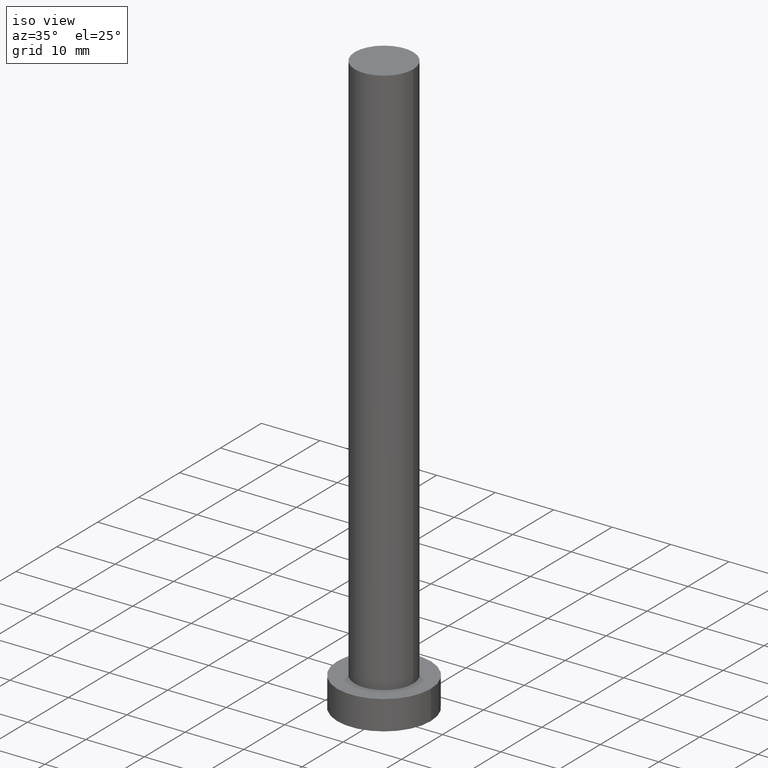
[diagram: clean part render]
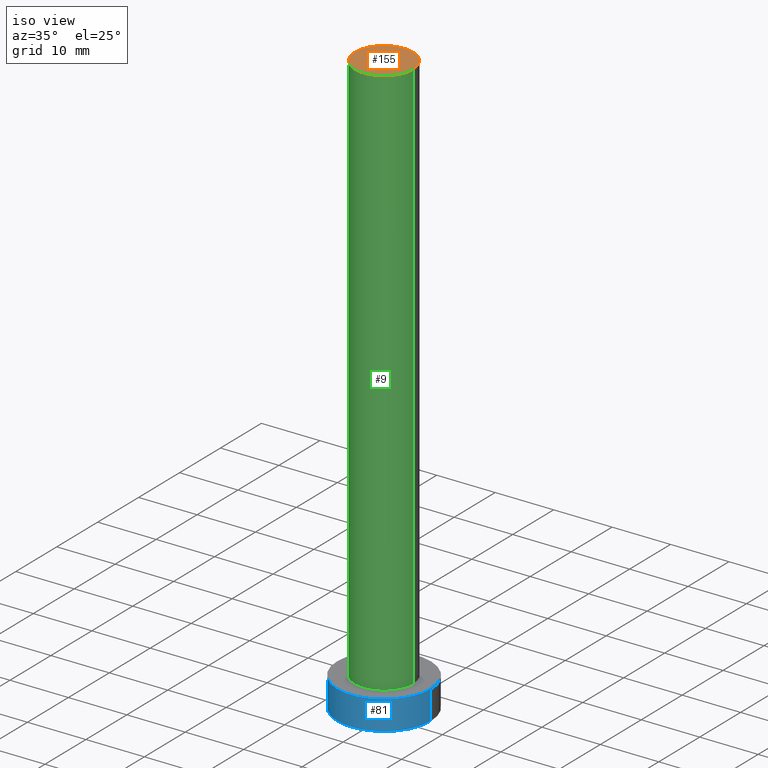
[diagram: same view with three faces highlighted in distinct colors, each labeled with its STEP entity id]
A machine part, iso view with three faces highlighted in distinct colors.
Their STEP definitions:

[orange] entity #155 — the highlighted planar face has unit normal (0, 0, 1).
#3 = CARTESIAN_POINT ( 'NONE',  ( 5.000000000000000000, 6.123233995736766282E-16, 100.0000000000000000 ) ) ;
#13 = CIRCLE ( 'NONE', #78, 5.000000000000000000 ) ;
#40 = EDGE_CURVE ( 'NONE', #74, #234, #214, .T. ) ;
#74 = VERTEX_POINT ( 'NONE', #137 ) ;
#78 = AXIS2_PLACEMENT_3D ( 'NONE', #207, #83, #128 ) ;
#83 = DIRECTION ( 'NONE',  ( 0.000000000000000000, 0.000000000000000000, 1.000000000000000000 ) ) ;
#95 = EDGE_LOOP ( 'NONE', ( #120, #135 ) ) ;
#107 = PLANE ( 'NONE',  #247 ) ;
#119 = EDGE_CURVE ( 'NONE', #234, #74, #13, .T. ) ;
#120 = ORIENTED_EDGE ( 'NONE', *, *, #40, .T. ) ;
#128 = DIRECTION ( 'NONE',  ( 1.000000000000000000, 0.000000000000000000, 0.000000000000000000 ) ) ;
#135 = ORIENTED_EDGE ( 'NONE', *, *, #119, .T. ) ;
#137 = CARTESIAN_POINT ( 'NONE',  ( -5.000000000000000000, 0.000000000000000000, 100.0000000000000000 ) ) ;
#155 = ADVANCED_FACE ( 'NONE', ( #206 ), #107, .T. ) ;
#162 = DIRECTION ( 'NONE',  ( 1.000000000000000000, 0.000000000000000000, -0.000000000000000000 ) ) ;
#166 = AXIS2_PLACEMENT_3D ( 'NONE', #195, #180, #252 ) ;
#180 = DIRECTION ( 'NONE',  ( 0.000000000000000000, 0.000000000000000000, 1.000000000000000000 ) ) ;
#185 = DIRECTION ( 'NONE',  ( 0.000000000000000000, 0.000000000000000000, 1.000000000000000000 ) ) ;
#195 = CARTESIAN_POINT ( 'NONE',  ( 0.000000000000000000, 0.000000000000000000, 100.0000000000000000 ) ) ;
#206 = FACE_OUTER_BOUND ( 'NONE', #95, .T. ) ;
#207 = CARTESIAN_POINT ( 'NONE',  ( 0.000000000000000000, 0.000000000000000000, 100.0000000000000000 ) ) ;
#214 = CIRCLE ( 'NONE', #166, 5.000000000000000000 ) ;
#224 = CARTESIAN_POINT ( 'NONE',  ( 0.000000000000000000, 0.000000000000000000, 100.0000000000000000 ) ) ;
#234 = VERTEX_POINT ( 'NONE', #3 ) ;
#247 = AXIS2_PLACEMENT_3D ( 'NONE', #224, #185, #162 ) ;
#252 = DIRECTION ( 'NONE',  ( 1.000000000000000000, 0.000000000000000000, 0.000000000000000000 ) ) ;

[blue] entity #81 — the highlighted cylindrical surface (partial cylindrical patch) has radius 8 mm, axis along (-0, -0, -1).
#15 = DIRECTION ( 'NONE',  ( -0.000000000000000000, -0.000000000000000000, -1.000000000000000000 ) ) ;
#24 = EDGE_CURVE ( 'NONE', #104, #139, #255, .T. ) ;
#34 = ORIENTED_EDGE ( 'NONE', *, *, #67, .F. ) ;
#37 = CARTESIAN_POINT ( 'NONE',  ( 0.000000000000000000, 0.000000000000000000, 5.000000000000000000 ) ) ;
#42 = CARTESIAN_POINT ( 'NONE',  ( -8.000000000000000000, 0.000000000000000000, 5.000000000000000000 ) ) ;
#43 = CARTESIAN_POINT ( 'NONE',  ( 0.000000000000000000, 0.000000000000000000, 0.000000000000000000 ) ) ;
#50 = CARTESIAN_POINT ( 'NONE',  ( 0.000000000000000000, 0.000000000000000000, 5.000000000000000000 ) ) ;
#60 = CARTESIAN_POINT ( 'NONE',  ( -8.000000000000000000, 0.000000000000000000, 0.000000000000000000 ) ) ;
#67 = EDGE_CURVE ( 'NONE', #104, #194, #160, .T. ) ;
#76 = ORIENTED_EDGE ( 'NONE', *, *, #24, .T. ) ;
#80 = CARTESIAN_POINT ( 'NONE',  ( 8.000000000000000000, 9.797174393178825657E-16, 5.000000000000000000 ) ) ;
#81 = ADVANCED_FACE ( 'NONE', ( #232 ), #220, .T. ) ;
#82 = DIRECTION ( 'NONE',  ( 0.000000000000000000, 0.000000000000000000, 1.000000000000000000 ) ) ;
#104 = VERTEX_POINT ( 'NONE', #42 ) ;
#105 = DIRECTION ( 'NONE',  ( -0.000000000000000000, -0.000000000000000000, -1.000000000000000000 ) ) ;
#113 = VECTOR ( 'NONE', #15, 1000.000000000000000 ) ;
#125 = CARTESIAN_POINT ( 'NONE',  ( 8.000000000000000000, 9.797174393178825657E-16, 5.000000000000000000 ) ) ;
#139 = VERTEX_POINT ( 'NONE', #60 ) ;
#158 = VERTEX_POINT ( 'NONE', #204 ) ;
#160 = CIRCLE ( 'NONE', #189, 8.000000000000000000 ) ;
#179 = CIRCLE ( 'NONE', #199, 8.000000000000000000 ) ;
#182 = ORIENTED_EDGE ( 'NONE', *, *, #250, .T. ) ;
#189 = AXIS2_PLACEMENT_3D ( 'NONE', #37, #233, #253 ) ;
#191 = EDGE_CURVE ( 'NONE', #194, #158, #243, .T. ) ;
#194 = VERTEX_POINT ( 'NONE', #125 ) ;
#196 = AXIS2_PLACEMENT_3D ( 'NONE', #50, #222, #200 ) ;
#199 = AXIS2_PLACEMENT_3D ( 'NONE', #43, #82, #226 ) ;
#200 = DIRECTION ( 'NONE',  ( -1.000000000000000000, 0.000000000000000000, 0.000000000000000000 ) ) ;
#202 = EDGE_LOOP ( 'NONE', ( #219, #34, #76, #182 ) ) ;
#204 = CARTESIAN_POINT ( 'NONE',  ( 8.000000000000000000, 9.797174393178825657E-16, 0.000000000000000000 ) ) ;
#215 = VECTOR ( 'NONE', #105, 1000.000000000000000 ) ;
#217 = CARTESIAN_POINT ( 'NONE',  ( -8.000000000000000000, 0.000000000000000000, 5.000000000000000000 ) ) ;
#219 = ORIENTED_EDGE ( 'NONE', *, *, #191, .F. ) ;
#220 = CYLINDRICAL_SURFACE ( 'NONE', #196, 8.000000000000000000 ) ;
#222 = DIRECTION ( 'NONE',  ( -0.000000000000000000, -0.000000000000000000, -1.000000000000000000 ) ) ;
#226 = DIRECTION ( 'NONE',  ( 1.000000000000000000, 0.000000000000000000, 0.000000000000000000 ) ) ;
#232 = FACE_OUTER_BOUND ( 'NONE', #202, .T. ) ;
#233 = DIRECTION ( 'NONE',  ( 0.000000000000000000, 0.000000000000000000, 1.000000000000000000 ) ) ;
#243 = LINE ( 'NONE', #80, #215 ) ;
#250 = EDGE_CURVE ( 'NONE', #139, #158, #179, .T. ) ;
#253 = DIRECTION ( 'NONE',  ( 1.000000000000000000, 0.000000000000000000, 0.000000000000000000 ) ) ;
#255 = LINE ( 'NONE', #217, #113 ) ;

[green] entity #9 — the highlighted cylindrical surface (edge-blend (fillet) strip) has radius 5 mm, axis along (-0, -0, -1).
#3 = CARTESIAN_POINT ( 'NONE',  ( 5.000000000000000000, 6.123233995736766282E-16, 100.0000000000000000 ) ) ;
#9 = ADVANCED_FACE ( 'NONE', ( #53 ), #100, .T. ) ;
#17 = ORIENTED_EDGE ( 'NONE', *, *, #40, .F. ) ;
#22 = LINE ( 'NONE', #38, #122 ) ;
#26 = CARTESIAN_POINT ( 'NONE',  ( 0.000000000000000000, 0.000000000000000000, 5.000000000000000000 ) ) ;
#31 = EDGE_LOOP ( 'NONE', ( #193, #17, #237, #205 ) ) ;
#32 = AXIS2_PLACEMENT_3D ( 'NONE', #94, #55, #102 ) ;
#38 = CARTESIAN_POINT ( 'NONE',  ( 5.000000000000000000, 6.123233995736766282E-16, 100.0000000000000000 ) ) ;
#40 = EDGE_CURVE ( 'NONE', #74, #234, #214, .T. ) ;
#47 = EDGE_CURVE ( 'NONE', #74, #178, #251, .T. ) ;
#53 = FACE_OUTER_BOUND ( 'NONE', #31, .T. ) ;
#54 = DIRECTION ( 'NONE',  ( -0.000000000000000000, -0.000000000000000000, -1.000000000000000000 ) ) ;
#55 = DIRECTION ( 'NONE',  ( -0.000000000000000000, -0.000000000000000000, -1.000000000000000000 ) ) ;
#61 = DIRECTION ( 'NONE',  ( 0.000000000000000000, 0.000000000000000000, 1.000000000000000000 ) ) ;
#74 = VERTEX_POINT ( 'NONE', #137 ) ;
#85 = DIRECTION ( 'NONE',  ( -0.000000000000000000, -0.000000000000000000, -1.000000000000000000 ) ) ;
#94 = CARTESIAN_POINT ( 'NONE',  ( 0.000000000000000000, 0.000000000000000000, 100.0000000000000000 ) ) ;
#100 = CYLINDRICAL_SURFACE ( 'NONE', #32, 5.000000000000000000 ) ;
#102 = DIRECTION ( 'NONE',  ( -1.000000000000000000, 0.000000000000000000, 0.000000000000000000 ) ) ;
#108 = CARTESIAN_POINT ( 'NONE',  ( 5.000000000000000000, 6.123233995736766282E-16, 5.000000000000000000 ) ) ;
#122 = VECTOR ( 'NONE', #85, 1000.000000000000000 ) ;
#124 = DIRECTION ( 'NONE',  ( 1.000000000000000000, 0.000000000000000000, 0.000000000000000000 ) ) ;
#133 = EDGE_CURVE ( 'NONE', #234, #134, #22, .T. ) ;
#134 = VERTEX_POINT ( 'NONE', #108 ) ;
#136 = AXIS2_PLACEMENT_3D ( 'NONE', #26, #61, #124 ) ;
#137 = CARTESIAN_POINT ( 'NONE',  ( -5.000000000000000000, 0.000000000000000000, 100.0000000000000000 ) ) ;
#144 = CIRCLE ( 'NONE', #136, 5.000000000000000000 ) ;
#159 = EDGE_CURVE ( 'NONE', #178, #134, #144, .T. ) ;
#166 = AXIS2_PLACEMENT_3D ( 'NONE', #195, #180, #252 ) ;
#167 = CARTESIAN_POINT ( 'NONE',  ( -5.000000000000000000, 0.000000000000000000, 5.000000000000000000 ) ) ;
#178 = VERTEX_POINT ( 'NONE', #167 ) ;
#180 = DIRECTION ( 'NONE',  ( 0.000000000000000000, 0.000000000000000000, 1.000000000000000000 ) ) ;
#193 = ORIENTED_EDGE ( 'NONE', *, *, #133, .F. ) ;
#195 = CARTESIAN_POINT ( 'NONE',  ( 0.000000000000000000, 0.000000000000000000, 100.0000000000000000 ) ) ;
#205 = ORIENTED_EDGE ( 'NONE', *, *, #159, .T. ) ;
#214 = CIRCLE ( 'NONE', #166, 5.000000000000000000 ) ;
#234 = VERTEX_POINT ( 'NONE', #3 ) ;
#236 = CARTESIAN_POINT ( 'NONE',  ( -5.000000000000000000, 0.000000000000000000, 100.0000000000000000 ) ) ;
#237 = ORIENTED_EDGE ( 'NONE', *, *, #47, .T. ) ;
#246 = VECTOR ( 'NONE', #54, 1000.000000000000000 ) ;
#251 = LINE ( 'NONE', #236, #246 ) ;
#252 = DIRECTION ( 'NONE',  ( 1.000000000000000000, 0.000000000000000000, 0.000000000000000000 ) ) ;